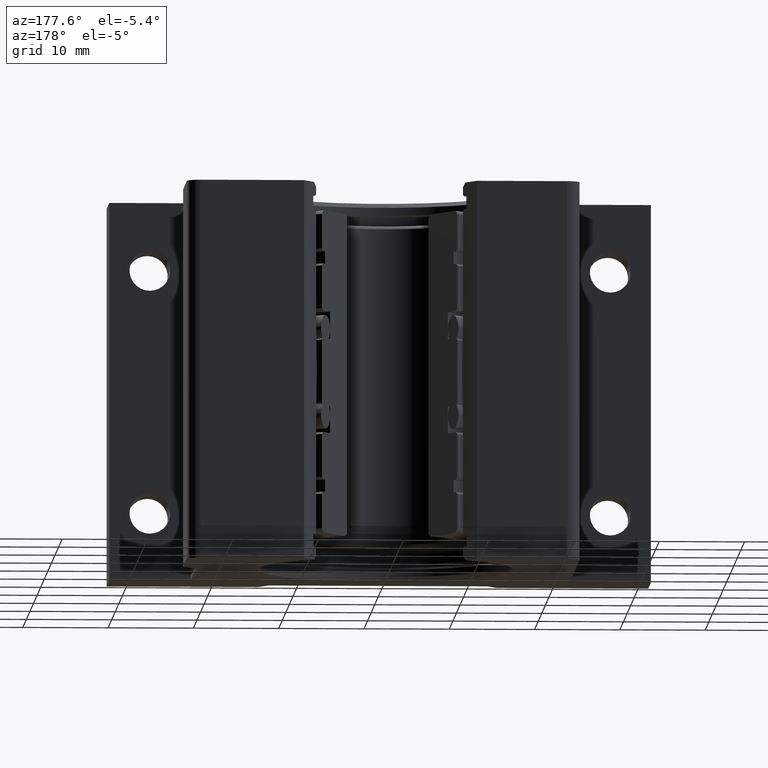
[diagram: clean part render]
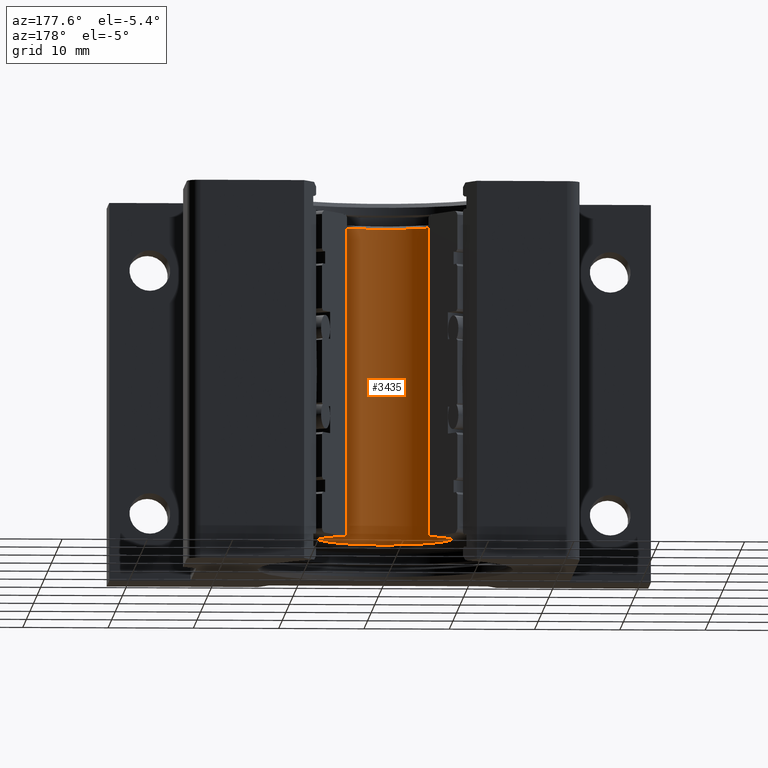
[diagram: same view with one face highlighted and labeled with its STEP entity id]
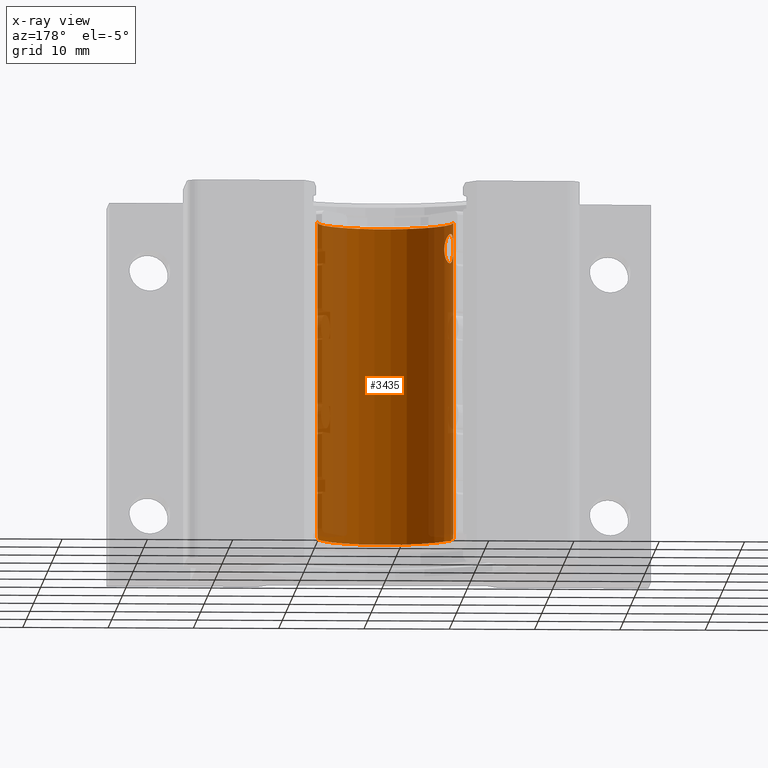
[diagram: x-ray of the same camera — body ghosted, the highlighted face saturated]
A machine part, auxiliary view. The second image highlights one B-rep face of the part: STEP entity #3435.
The next image is the same camera in x-ray: the body ghosted, the highlighted face saturated — about 39% of this face is hidden behind the body in this view.
In plain terms, the highlighted cylindrical surface (partial cylindrical patch) has radius 7.9496 mm, axis along (0, 0, 1).
Its self-contained STEP definition (entity closure, byte-faithful):
#110 = B_SPLINE_CURVE_WITH_KNOTS ( 'NONE', 3,
 ( #2375, #1611, #2411, #4164, #3341, #9338, #6675, #754, #5027, #9412, #6772, #4131, #4201, #7657, #4928, #9374, #8469, #3276, #5901, #11078, #10212, #4992, #5787, #9295, #5867, #11047, #2450, #6740 ),
 .UNSPECIFIED., .F., .F.,
 ( 4, 2, 2, 2, 2, 2, 2, 2, 2, 2, 2, 2, 2, 4 ),
 ( 3.496446946337351263E-18, 0.0003385110182099681998, 0.0006770220364199329302, 0.001015533054629897715, 0.001354044072839862391, 0.002031066109259791093, 0.002708088145679720012, 0.003046599163889684471, 0.003385110182099648497, 0.004062132218519576114, 0.004400643236729539706, 0.004739154254939503298, 0.005077665273149466890, 0.005416176291359429615 ),
 .UNSPECIFIED. ) ;
#178 = CIRCLE ( 'NONE', #5820, 0.3129750000000000032 ) ;
#292 = CARTESIAN_POINT ( 'NONE',  ( -0.3087490939408805701, -0.05142482062479798027, 0.6823208461475065434 ) ) ;
#335 = CARTESIAN_POINT ( 'NONE',  ( -0.3126237212645427976, -0.01522393464608431425, 0.6391107300407609104 ) ) ;
#754 = CARTESIAN_POINT ( 'NONE',  ( -0.2837833774108495799, -0.1320099979620329711, 0.5797659403877918338 ) ) ;
#1167 = VERTEX_POINT ( 'NONE', #1459 ) ;
#1194 = CARTESIAN_POINT ( 'NONE',  ( -0.2774889704050105266, -0.1447522778009635858, 0.6257562598804323750 ) ) ;
#1227 = CARTESIAN_POINT ( 'NONE',  ( -0.3123134240118233262, -0.02041269143476096698, 0.6513907506801634995 ) ) ;
#1459 = CARTESIAN_POINT ( 'NONE',  ( -0.3129750000000000032, 3.832838319631428317E-17, 0.7307736875482778727 ) ) ;
#1611 = CARTESIAN_POINT ( 'NONE',  ( -0.2774889704050104711, -0.1447522778009635858, 0.6167425493666658376 ) ) ;
#1864 = EDGE_CURVE ( 'NONE', #1167, #6365, #178, .T. ) ;
#2061 = CARTESIAN_POINT ( 'NONE',  ( -0.2888435281923697473, -0.1206763043670038976, 0.6756036710968567061 ) ) ;
#2101 = CARTESIAN_POINT ( 'NONE',  ( -0.2917335587436471478, -0.1136343340108995764, 0.6806600517048222443 ) ) ;
#2375 = CARTESIAN_POINT ( 'NONE',  ( -0.2774889704050103045, -0.1447522778009635303, 0.6212499999999998579 ) ) ;
#2411 = CARTESIAN_POINT ( 'NONE',  ( -0.2777001323483648254, -0.1443494936670888518, 0.6123132068809444828 ) ) ;
#2445 = DIRECTION ( 'NONE',  ( 0.0000000000000000000, 1.224646799147352714E-16, 1.000000000000000000 ) ) ;
#2450 = CARTESIAN_POINT ( 'NONE',  ( -0.3126885898156693822, -0.01338642686037551724, 0.6168045342964059152 ) ) ;
#2523 = ORIENTED_EDGE ( 'NONE', *, *, #3338, .F. ) ;
#2532 = VERTEX_POINT ( 'NONE', #10067 ) ;
#2594 = EDGE_CURVE ( 'NONE', #2532, #9638, #110, .T. ) ;
#2899 = CARTESIAN_POINT ( 'NONE',  ( -0.3104023871523055589, -0.04021732073791448037, 0.6753057285116232933 ) ) ;
#2900 = DIRECTION ( 'NONE',  ( 0.0000000000000000000, 0.0000000000000000000, 1.000000000000000000 ) ) ;
#2928 = CARTESIAN_POINT ( 'NONE',  ( -0.2959144895223492222, -0.1020045864180188222, 0.6857665542935603709 ) ) ;
#2934 = DIRECTION ( 'NONE',  ( 0.0000000000000000000, -1.224646799147352714E-16, 1.000000000000000000 ) ) ;
#2971 = CARTESIAN_POINT ( 'NONE',  ( -0.3121700161851693744, -0.02257328509048376480, 0.6553634647284749537 ) ) ;
#3049 = CARTESIAN_POINT ( 'NONE',  ( -0.3115093725060317786, -0.03041891670947719298, 0.6661702963611827455 ) ) ;
#3276 = CARTESIAN_POINT ( 'NONE',  ( -0.3094732688946462695, -0.04741507885587414872, 0.5618582869312351846 ) ) ;
#3315 = CARTESIAN_POINT ( 'NONE',  ( 0.3129750000000000032, 0.0000000000000000000, -0.7462412383038781183 ) ) ;
#3338 = EDGE_CURVE ( 'NONE', #9638, #2532, #7918, .T. ) ;
#3341 = CARTESIAN_POINT ( 'NONE',  ( -0.2791290513523298489, -0.1415745992835070188, 0.5992770536465940046 ) ) ;
#3435 = ADVANCED_FACE ( 'NONE', ( #5945, #4189 ), #7442, .F. ) ;
#3533 = ORIENTED_EDGE ( 'NONE', *, *, #5981, .T. ) ;
#3724 = CARTESIAN_POINT ( 'NONE',  ( -0.3126885898156692156, -0.01338642686037551377, 0.6212499999999999689 ) ) ;
#3743 = CARTESIAN_POINT ( 'NONE',  ( -0.3046403834889304107, -0.07230594142465225638, 0.6892461022685478778 ) ) ;
#3869 = VERTEX_POINT ( 'NONE', #8525 ) ;
#4131 = CARTESIAN_POINT ( 'NONE',  ( -0.2972882378125025760, -0.09818555985875666858, 0.5550521188024202246 ) ) ;
#4164 = CARTESIAN_POINT ( 'NONE',  ( -0.2785151152708872369, -0.1427706916488415967, 0.6036034697778619451 ) ) ;
#4173 = ORIENTED_EDGE ( 'NONE', *, *, #2594, .F. ) ;
#4189 = FACE_OUTER_BOUND ( 'NONE', #5272, .T. ) ;
#4201 = CARTESIAN_POINT ( 'NONE',  ( -0.2999991624478790531, -0.08962740982511629984, 0.5532535205955075863 ) ) ;
#4604 = CARTESIAN_POINT ( 'NONE',  ( -0.2774889704050103045, -0.1447522778009635303, 0.6212499999999998579 ) ) ;
#4644 = CARTESIAN_POINT ( 'NONE',  ( -0.3093634637345228366, -0.04755336101018126788, 0.6802268195681445695 ) ) ;
#4928 = CARTESIAN_POINT ( 'NONE',  ( -0.3045316515756660292, -0.07233893366407373460, 0.5536940390489060171 ) ) ;
#4992 = CARTESIAN_POINT ( 'NONE',  ( -0.3121684969424673439, -0.02259291040988570254, 0.5871061023332367901 ) ) ;
#5027 = CARTESIAN_POINT ( 'NONE',  ( -0.2850020023884529685, -0.1293724241330811431, 0.5762817754630490397 ) ) ;
#5272 = EDGE_LOOP ( 'NONE', ( #5430, #3533, #11208, #11007 ) ) ;
#5273 = LINE ( 'NONE', #3315, #6385 ) ;
#5430 = ORIENTED_EDGE ( 'NONE', *, *, #6294, .F. ) ;
#5787 = CARTESIAN_POINT ( 'NONE',  ( -0.3123128677546854193, -0.02042176601713280651, 0.5910888294485727723 ) ) ;
#5820 = AXIS2_PLACEMENT_3D ( 'NONE', #8123, #2934, #6429 ) ;
#5867 = CARTESIAN_POINT ( 'NONE',  ( -0.3125857283594249414, -0.01563054473194273875, 0.6035442644355115682 ) ) ;
#5901 = CARTESIAN_POINT ( 'NONE',  ( -0.3104816690317093175, -0.03994119839331652932, 0.5668601373369871466 ) ) ;
#5945 = FACE_BOUND ( 'NONE', #11135, .T. ) ;
#5981 = EDGE_CURVE ( 'NONE', #9447, #1167, #10735, .T. ) ;
#6128 = AXIS2_PLACEMENT_3D ( 'NONE', #6509, #8273, #7379 ) ;
#6294 = EDGE_CURVE ( 'NONE', #9447, #3869, #7154, .T. ) ;
#6365 = VERTEX_POINT ( 'NONE', #6732 ) ;
#6385 = VECTOR ( 'NONE', #10183, 39.37007874015748143 ) ;
#6429 = DIRECTION ( 'NONE',  ( 0.0000000000000000000, 1.000000000000000000, 0.0000000000000000000 ) ) ;
#6465 = CARTESIAN_POINT ( 'NONE',  ( -0.2973056429877059537, -0.09788642389639089225, 0.6870825716033384101 ) ) ;
#6509 = CARTESIAN_POINT ( 'NONE',  ( 0.0000000000000000000, 0.0000000000000000000, -0.7462412383038781183 ) ) ;
#6596 = CARTESIAN_POINT ( 'NONE',  ( 0.0000000000000000000, -7.007483858838805250E-17, -0.7307736875482778727 ) ) ;
#6675 = CARTESIAN_POINT ( 'NONE',  ( -0.2816306415513750161, -0.1365423985288289621, 0.5871478366552531636 ) ) ;
#6732 = CARTESIAN_POINT ( 'NONE',  ( 0.3129750000000000032, -5.459328976215787263E-31, 0.7307736875482778727 ) ) ;
#6740 = CARTESIAN_POINT ( 'NONE',  ( -0.3126885898156692156, -0.01338642686037551377, 0.6212499999999999689 ) ) ;
#6772 = CARTESIAN_POINT ( 'NONE',  ( -0.2917340831655375055, -0.1136306526690920027, 0.5618427789491057256 ) ) ;
#7154 = CIRCLE ( 'NONE', #9398, 0.3129750000000000032 ) ;
#7234 = CARTESIAN_POINT ( 'NONE',  ( -0.3126885898156692156, -0.01338642686037551377, 0.6212499999999999689 ) ) ;
#7309 = CARTESIAN_POINT ( 'NONE',  ( -0.3117670657764023967, -0.02758566479165589294, 0.6627566347087238130 ) ) ;
#7379 = DIRECTION ( 'NONE',  ( 1.000000000000000000, 0.0000000000000000000, 0.0000000000000000000 ) ) ;
#7442 = CYLINDRICAL_SURFACE ( 'NONE', #6128, 0.3129750000000000032 ) ;
#7657 = CARTESIAN_POINT ( 'NONE',  ( -0.3034557316141448524, -0.07673183455790159868, 0.5532482476576304764 ) ) ;
#7918 = B_SPLINE_CURVE_WITH_KNOTS ( 'NONE', 3,
 ( #7234, #10734, #335, #1227, #2971, #7309, #3049, #10801, #2899, #4644, #292, #10697, #3743, #9080, #9850, #6465, #2928, #2101, #2061, #8115, #8231, #9819, #9965, #8964, #1194, #4604 ),
 .UNSPECIFIED., .F., .F.,
 ( 4, 2, 2, 2, 2, 2, 2, 2, 2, 2, 2, 2, 4 ),
 ( 0.005416176291359429615, 0.006093019475913837718, 0.006431441068191037433, 0.006769862660468237148, 0.007108284252745436863, 0.007446705845022635710, 0.008123549029577036007, 0.008461970621854237457, 0.008800392214131437171, 0.009477235398685838336, 0.01015407858324023950, 0.01049250017551743575, 0.01083092176779463026 ),
 .UNSPECIFIED. ) ;
#8115 = CARTESIAN_POINT ( 'NONE',  ( -0.2837322527066343802, -0.1322473553168933835, 0.6631184426578364821 ) ) ;
#8123 = CARTESIAN_POINT ( 'NONE',  ( -0.0000000000000000000, -7.007483858838805250E-17, 0.7307736875482778727 ) ) ;
#8231 = CARTESIAN_POINT ( 'NONE',  ( -0.2814723690793160538, -0.1368894815467637249, 0.6555600422847580599 ) ) ;
#8273 = DIRECTION ( 'NONE',  ( 0.0000000000000000000, 0.0000000000000000000, 1.000000000000000000 ) ) ;
#8469 = CARTESIAN_POINT ( 'NONE',  ( -0.3072685821627709202, -0.05963643894668920614, 0.5567262060878094276 ) ) ;
#8525 = CARTESIAN_POINT ( 'NONE',  ( 0.3129750000000000032, -5.459328976215787263E-31, -0.7307736875482778727 ) ) ;
#8877 = CARTESIAN_POINT ( 'NONE',  ( -0.3129750000000000032, 3.832838319631428317E-17, -0.7307736875482778727 ) ) ;
#8964 = CARTESIAN_POINT ( 'NONE',  ( -0.2777000909998899592, -0.1443496320257890708, 0.6302017091594598330 ) ) ;
#9080 = CARTESIAN_POINT ( 'NONE',  ( -0.3011569928765244764, -0.08531094135406033785, 0.6892519392796798705 ) ) ;
#9230 = EDGE_CURVE ( 'NONE', #3869, #6365, #5273, .T. ) ;
#9295 = CARTESIAN_POINT ( 'NONE',  ( -0.3125205540616610711, -0.01694931212192698003, 0.5993048338386456342 ) ) ;
#9338 = CARTESIAN_POINT ( 'NONE',  ( -0.2806900551533153543, -0.1384539179986105928, 0.5910484093927335092 ) ) ;
#9374 = CARTESIAN_POINT ( 'NONE',  ( -0.3064326717015200541, -0.06380803906191234720, 0.5554371231105913465 ) ) ;
#9398 = AXIS2_PLACEMENT_3D ( 'NONE', #6596, #2445, #10164 ) ;
#9412 = CARTESIAN_POINT ( 'NONE',  ( -0.2888386171366396082, -0.1206882899936199405, 0.5669047104416841121 ) ) ;
#9447 = VERTEX_POINT ( 'NONE', #8877 ) ;
#9638 = VERTEX_POINT ( 'NONE', #3724 ) ;
#9819 = CARTESIAN_POINT ( 'NONE',  ( -0.2791409073855908307, -0.1415511320018853769, 0.6432930919772386069 ) ) ;
#9850 = CARTESIAN_POINT ( 'NONE',  ( -0.2999194526190531729, -0.08955846847866832938, 0.6888139126032148951 ) ) ;
#9965 = CARTESIAN_POINT ( 'NONE',  ( -0.2785237463862946239, -0.1427539124026759032, 0.6389732518916573234 ) ) ;
#10067 = CARTESIAN_POINT ( 'NONE',  ( -0.2774889704050103045, -0.1447522778009635303, 0.6212499999999998579 ) ) ;
#10164 = DIRECTION ( 'NONE',  ( 0.0000000000000000000, 1.000000000000000000, -4.364323018874132229E-16 ) ) ;
#10183 = DIRECTION ( 'NONE',  ( 0.0000000000000000000, 0.0000000000000000000, 1.000000000000000000 ) ) ;
#10212 = CARTESIAN_POINT ( 'NONE',  ( -0.3117674149392322680, -0.02758059220207024348, 0.5797523375571563831 ) ) ;
#10450 = VECTOR ( 'NONE', #2900, 39.37007874015748143 ) ;
#10659 = CARTESIAN_POINT ( 'NONE',  ( -0.3129750000000000032, 3.832838319631429550E-17, -0.7462412383038781183 ) ) ;
#10697 = CARTESIAN_POINT ( 'NONE',  ( -0.3065449604270321093, -0.06365686219268530677, 0.6874713083796279989 ) ) ;
#10734 = CARTESIAN_POINT ( 'NONE',  ( -0.3126885898156691601, -0.01338642686037551724, 0.6301385826510431665 ) ) ;
#10735 = LINE ( 'NONE', #10659, #10450 ) ;
#10801 = CARTESIAN_POINT ( 'NONE',  ( -0.3108293205444963014, -0.03672237931733838417, 0.6724420436842557525 ) ) ;
#11007 = ORIENTED_EDGE ( 'NONE', *, *, #9230, .F. ) ;
#11047 = CARTESIAN_POINT ( 'NONE',  ( -0.3126700038518303582, -0.01384269460422652212, 0.6122900619608833139 ) ) ;
#11078 = CARTESIAN_POINT ( 'NONE',  ( -0.3115101503786734116, -0.03041349557776621901, 0.5763327056633962275 ) ) ;
#11135 = EDGE_LOOP ( 'NONE', ( #4173, #2523 ) ) ;
#11208 = ORIENTED_EDGE ( 'NONE', *, *, #1864, .T. ) ;